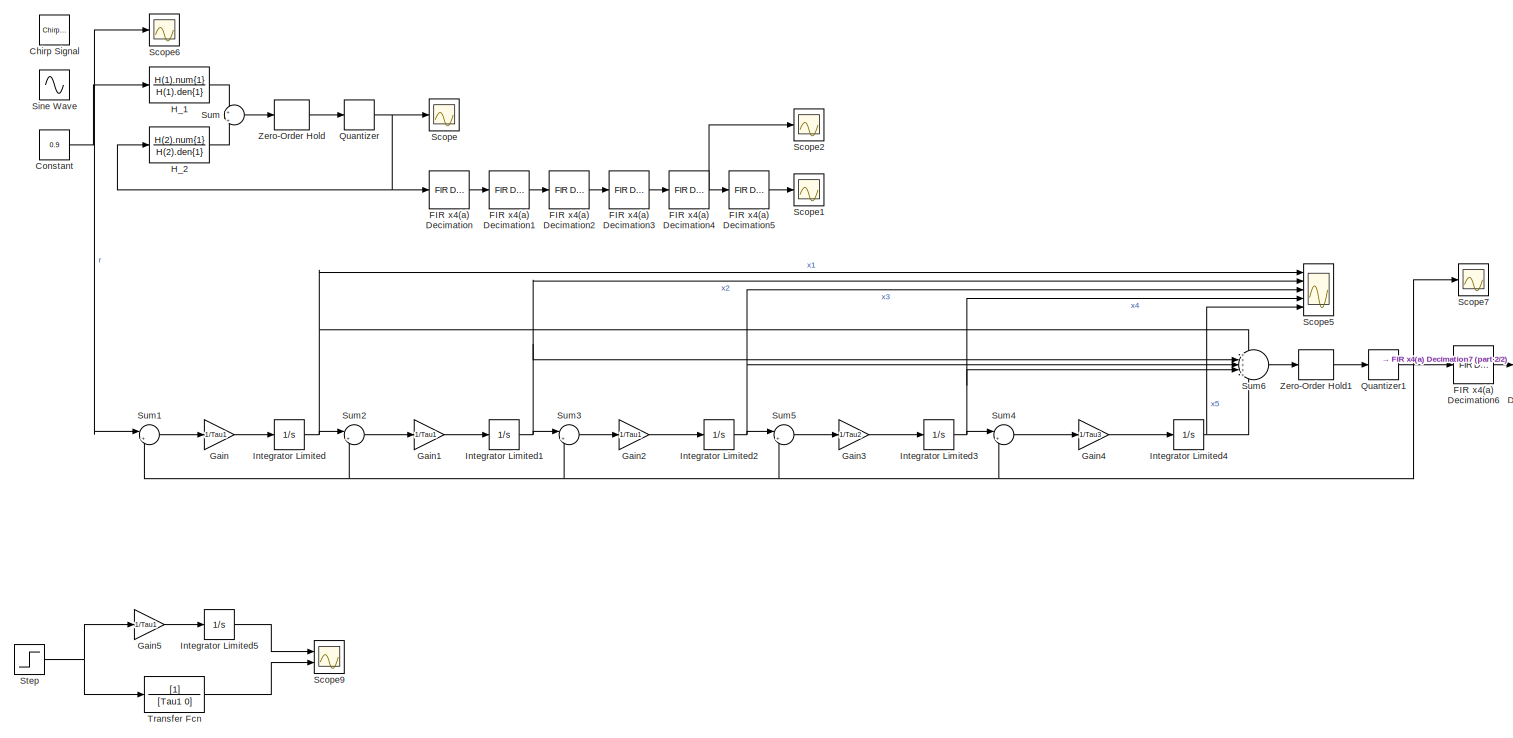
[diagram: root canvas - part 1/2, most of the canvas]
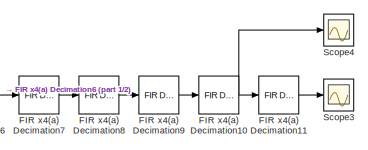
[diagram: root canvas - part 2/2, middle right region]
MODEL slx_2ecb0cfe1145
KIND model
CONFIG AbsTol = auto
CONFIG EnableMultiTasking = off
CONFIG FixedStep = auto
CONFIG MaxStep = auto
CONFIG MinStep = auto
CONFIG RelTol = 1e-9
CONFIG SampleTimeConstraint = Unconstrained
CONFIG Solver = ode45
CONFIG SolverName = ode45
CONFIG StartTime = 0.0
CONFIG StopTime = 0.0025
BLOCK [Reference] Chirp Signal  REF=simulink/Sources/Chirp Signal
  Ports = [0, 1]
  SourceBlock = simulink/Sources/Chirp Signal
  SourceProductBaseCode = SL
  SourceProductName = Simulink
  SourceType = chirp
BLOCK [Constant] Constant
  Value = 0.9
BLOCK [Reference] FIR x4(a) Decimation  REF=dspmlti4/FIR
Decimation
  Ports = [1, 1]
  SourceBlock = dspmlti4/FIR\nDecimation
  SourceProductBaseCode = DS
  SourceProductName = DSP System Toolbox
  SourceType = FIR Decimation
  UserDataPersistent = on
BLOCK [Reference] FIR x4(a) Decimation1  REF=dspmlti4/FIR
Decimation
  Ports = [1, 1]
  SourceBlock = dspmlti4/FIR\nDecimation
  SourceProductBaseCode = DS
  SourceProductName = DSP System Toolbox
  SourceType = FIR Decimation
  UserDataPersistent = on
BLOCK [Reference] FIR x4(a) Decimation10  REF=dspmlti4/FIR
Decimation
  Ports = [1, 1]
  SourceBlock = dspmlti4/FIR\nDecimation
  SourceProductBaseCode = DS
  SourceProductName = DSP System Toolbox
  SourceType = FIR Decimation
  UserDataPersistent = on
BLOCK [Reference] FIR x4(a) Decimation11  REF=dspmlti4/FIR
Decimation
  Ports = [1, 1]
  SourceBlock = dspmlti4/FIR\nDecimation
  SourceProductBaseCode = DS
  SourceProductName = DSP System Toolbox
  SourceType = FIR Decimation
  UserDataPersistent = on
BLOCK [Reference] FIR x4(a) Decimation2  REF=dspmlti4/FIR
Decimation
  Ports = [1, 1]
  SourceBlock = dspmlti4/FIR\nDecimation
  SourceProductBaseCode = DS
  SourceProductName = DSP System Toolbox
  SourceType = FIR Decimation
  UserDataPersistent = on
BLOCK [Reference] FIR x4(a) Decimation3  REF=dspmlti4/FIR
Decimation
  Ports = [1, 1]
  SourceBlock = dspmlti4/FIR\nDecimation
  SourceProductBaseCode = DS
  SourceProductName = DSP System Toolbox
  SourceType = FIR Decimation
  UserDataPersistent = on
BLOCK [Reference] FIR x4(a) Decimation4  REF=dspmlti4/FIR
Decimation
  Ports = [1, 1]
  SourceBlock = dspmlti4/FIR\nDecimation
  SourceProductBaseCode = DS
  SourceProductName = DSP System Toolbox
  SourceType = FIR Decimation
  UserDataPersistent = on
BLOCK [Reference] FIR x4(a) Decimation5  REF=dspmlti4/FIR
Decimation
  Ports = [1, 1]
  SourceBlock = dspmlti4/FIR\nDecimation
  SourceProductBaseCode = DS
  SourceProductName = DSP System Toolbox
  SourceType = FIR Decimation
  UserDataPersistent = on
BLOCK [Reference] FIR x4(a) Decimation6  REF=dspmlti4/FIR
Decimation
  Ports = [1, 1]
  SourceBlock = dspmlti4/FIR\nDecimation
  SourceProductBaseCode = DS
  SourceProductName = DSP System Toolbox
  SourceType = FIR Decimation
  UserDataPersistent = on
BLOCK [Reference] FIR x4(a) Decimation7  REF=dspmlti4/FIR
Decimation
  Ports = [1, 1]
  SourceBlock = dspmlti4/FIR\nDecimation
  SourceProductBaseCode = DS
  SourceProductName = DSP System Toolbox
  SourceType = FIR Decimation
  UserDataPersistent = on
BLOCK [Reference] FIR x4(a) Decimation8  REF=dspmlti4/FIR
Decimation
  Ports = [1, 1]
  SourceBlock = dspmlti4/FIR\nDecimation
  SourceProductBaseCode = DS
  SourceProductName = DSP System Toolbox
  SourceType = FIR Decimation
  UserDataPersistent = on
BLOCK [Reference] FIR x4(a) Decimation9  REF=dspmlti4/FIR
Decimation
  Ports = [1, 1]
  SourceBlock = dspmlti4/FIR\nDecimation
  SourceProductBaseCode = DS
  SourceProductName = DSP System Toolbox
  SourceType = FIR Decimation
  UserDataPersistent = on
BLOCK [Gain] Gain
  Gain = 1/Tau1
  OutDataTypeStr = Inherit: Inherit via internal rule
  ParamDataTypeStr = Inherit: Inherit via internal rule
  SaturateOnIntegerOverflow = off
BLOCK [Gain] Gain1
  Gain = 1/Tau1
  OutDataTypeStr = Inherit: Inherit via internal rule
  ParamDataTypeStr = Inherit: Inherit via internal rule
  SaturateOnIntegerOverflow = off
BLOCK [Gain] Gain2
  Gain = 1/Tau1
  OutDataTypeStr = Inherit: Inherit via internal rule
  ParamDataTypeStr = Inherit: Inherit via internal rule
  SaturateOnIntegerOverflow = off
BLOCK [Gain] Gain3
  Gain = 1/Tau2
  OutDataTypeStr = Inherit: Inherit via internal rule
  ParamDataTypeStr = Inherit: Inherit via internal rule
  SaturateOnIntegerOverflow = off
BLOCK [Gain] Gain4
  Gain = 1/Tau3
  OutDataTypeStr = Inherit: Inherit via internal rule
  ParamDataTypeStr = Inherit: Inherit via internal rule
  SaturateOnIntegerOverflow = off
BLOCK [Gain] Gain5
  Gain = 1/Tau1
  OutDataTypeStr = Inherit: Inherit via internal rule
  ParamDataTypeStr = Inherit: Inherit via internal rule
  SaturateOnIntegerOverflow = off
BLOCK [TransferFcn] H_1
  Denominator = H(1).den{1}
  Numerator = H(1).num{1}
BLOCK [TransferFcn] H_2
  Denominator = H(2).den{1}
  Numerator = H(2).num{1}
BLOCK [Integrator] Integrator Limited
  LowerSaturationLimit = -3
  Ports = [1, 1]
  UpperSaturationLimit = 3
  WrappedStateLowerValue = -3
  WrappedStateUpperValue = 3
BLOCK [Integrator] Integrator Limited1
  LimitOutput = on
  LowerSaturationLimit = -3
  Ports = [1, 1]
  UpperSaturationLimit = 3
  WrappedStateLowerValue = -3
  WrappedStateUpperValue = 3
BLOCK [Integrator] Integrator Limited2
  LimitOutput = on
  LowerSaturationLimit = -3
  Ports = [1, 1]
  UpperSaturationLimit = 3
  WrappedStateLowerValue = -3
  WrappedStateUpperValue = 3
BLOCK [Integrator] Integrator Limited3
  LimitOutput = on
  LowerSaturationLimit = -3
  Ports = [1, 1]
  UpperSaturationLimit = 3
  WrappedStateLowerValue = -3
  WrappedStateUpperValue = 3
BLOCK [Integrator] Integrator Limited4
  LimitOutput = on
  LowerSaturationLimit = -3
  Ports = [1, 1]
  UpperSaturationLimit = 3
  WrappedStateLowerValue = -3
  WrappedStateUpperValue = 3
BLOCK [Integrator] Integrator Limited5
  LimitOutput = on
  LowerSaturationLimit = -Inf
  Ports = [1, 1]
  UpperSaturationLimit = Inf
BLOCK [Signum] Quantizer
BLOCK [Signum] Quantizer1
BLOCK [Scope] Scope
  NumInputPorts = 1
  Ports = [1]
  ScopeSpecificationString = Simulink.scopes.TimeScopeBlockCfg('CurrentConfiguration', extmgr.ConfigurationSet(extmgr.Configuration('Core','General UI',true),extmgr.Configuration('Core','Source UI',true),extmgr.Configuration('Sources','WiredSimulink',true),extmgr.Configuration('Visuals','Time Domain',true,'SerializedDisplays',{struct('MinYLimReal','-1.25','MaxYLimReal','1.25','YLabelReal','','MinYLimMag','0.00000','MaxYLimMag...<+1357ch>
BLOCK [Scope] Scope1
  NumInputPorts = 1
  Ports = [1]
  ScopeSpecificationString = Simulink.scopes.TimeScopeBlockCfg('CurrentConfiguration', extmgr.ConfigurationSet(extmgr.Configuration('Core','General UI',true),extmgr.Configuration('Core','Source UI',true),extmgr.Configuration('Sources','WiredSimulink',true,'DataLoggingVariableName','ScopeData1'),extmgr.Configuration('Visuals','Time Domain',true,'SerializedDisplays',{struct('MinYLimReal','-0.00017','MaxYLimReal','0.00016','YLab...<+1426ch>
BLOCK [Scope] Scope2
  NumInputPorts = 1
  Ports = [1]
  ScopeSpecificationString = Simulink.scopes.TimeScopeBlockCfg('CurrentConfiguration', extmgr.ConfigurationSet(extmgr.Configuration('Core','General UI',true),extmgr.Configuration('Core','Source UI',true),extmgr.Configuration('Sources','WiredSimulink',true,'DataLoggingVariableName','ScopeData2'),extmgr.Configuration('Visuals','Time Domain',true,'SerializedDisplays',{struct('MinYLimReal','-0.00636','MaxYLimReal','0.0222','YLabe...<+1451ch>
BLOCK [Scope] Scope3
  NumInputPorts = 1
  Ports = [1]
  ScopeSpecificationString = Simulink.scopes.TimeScopeBlockCfg('CurrentConfiguration', extmgr.ConfigurationSet(extmgr.Configuration('Core','General UI',true),extmgr.Configuration('Core','Source UI',true),extmgr.Configuration('Sources','WiredSimulink',true,'DataLoggingVariableName','ScopeData1'),extmgr.Configuration('Visuals','Time Domain',true,'SerializedDisplays',{struct('MinYLimReal','-0.00017','MaxYLimReal','0.00016','YLab...<+1427ch>
BLOCK [Scope] Scope4
  NumInputPorts = 1
  Ports = [1]
  ScopeSpecificationString = Simulink.scopes.TimeScopeBlockCfg('CurrentConfiguration', extmgr.ConfigurationSet(extmgr.Configuration('Core','General UI',true),extmgr.Configuration('Core','Source UI',true),extmgr.Configuration('Sources','WiredSimulink',true,'DataLoggingVariableName','ScopeData2'),extmgr.Configuration('Visuals','Time Domain',true,'SerializedDisplays',{struct('MinYLimReal','-1.35354','MaxYLimReal','1.40648','YLab...<+1455ch>
BLOCK [Scope] Scope5
  NumInputPorts = 5
  Ports = [5]
  ScopeSpecificationString = Simulink.scopes.TimeScopeBlockCfg('CurrentConfiguration', extmgr.ConfigurationSet(extmgr.Configuration('Core','General UI',true),extmgr.Configuration('Core','Source UI',true),extmgr.Configuration('Sources','WiredSimulink',true,'DataLoggingVariableName','ScopeData3'),extmgr.Configuration('Visuals','Time Domain',true,'SerializedDisplays',{struct('MinYLimReal','-1.06491','MaxYLimReal','1.13648','YLab...<+1481ch>
BLOCK [Scope] Scope6
  NumInputPorts = 1
  Ports = [1]
  ScopeSpecificationString = Simulink.scopes.TimeScopeBlockCfg('CurrentConfiguration', extmgr.ConfigurationSet(extmgr.Configuration('Core','General UI',true),extmgr.Configuration('Core','Source UI',true),extmgr.Configuration('Sources','WiredSimulink',true,'DataLoggingVariableName','ScopeData4'),extmgr.Configuration('Visuals','Time Domain',true,'SerializedDisplays',{struct('MinYLimReal','0.8','MaxYLimReal','1.00000','YLabelRea...<+1342ch>
BLOCK [Scope] Scope7
  NumInputPorts = 1
  Ports = [1]
  ScopeSpecificationString = Simulink.scopes.TimeScopeBlockCfg('CurrentConfiguration', extmgr.ConfigurationSet(extmgr.Configuration('Core','General UI',true),extmgr.Configuration('Core','Source UI',true),extmgr.Configuration('Sources','WiredSimulink',true,'DataLoggingVariableName','ScopeData5'),extmgr.Configuration('Visuals','Time Domain',true,'SerializedDisplays',{struct('MinYLimReal','-1.25','MaxYLimReal','1.25','YLabelReal...<+1450ch>
BLOCK [Scope] Scope9
  NumInputPorts = 2
  Ports = [2]
  ScopeSpecificationString = Simulink.scopes.TimeScopeBlockCfg('CurrentConfiguration', extmgr.ConfigurationSet(extmgr.Configuration('Core','General UI',true),extmgr.Configuration('Core','Source UI',true),extmgr.Configuration('Sources','WiredSimulink',true,'DataLoggingVariableName','ScopeData7'),extmgr.Configuration('Visuals','Time Domain',true,'SerializedDisplays',{struct('MinYLimReal','-390.62498','MaxYLimReal','3515.62486',...<+2075ch>
BLOCK [Sin] Sine Wave
  Amplitude = 0.5
  Frequency = 2*pi*20000
  Ports = [0, 1]
  SampleTime = 0
BLOCK [Step] Step
  SampleTime = 0
  Time = 100e-12
BLOCK [Sum] Sum
  IconShape = round
  InputSameDT = off
  Inputs = +|+
  OutDataTypeStr = Inherit: Inherit via internal rule
  Ports = [2, 1]
  SaturateOnIntegerOverflow = off
BLOCK [Sum] Sum1
  IconShape = round
  InputSameDT = off
  Inputs = |+-
  OutDataTypeStr = Inherit: Inherit via internal rule
  Ports = [2, 1]
  SaturateOnIntegerOverflow = off
BLOCK [Sum] Sum2
  IconShape = round
  InputSameDT = off
  Inputs = |+-
  OutDataTypeStr = Inherit: Inherit via internal rule
  Ports = [2, 1]
  SaturateOnIntegerOverflow = off
BLOCK [Sum] Sum3
  IconShape = round
  InputSameDT = off
  Inputs = |+-
  OutDataTypeStr = Inherit: Inherit via internal rule
  Ports = [2, 1]
  SaturateOnIntegerOverflow = off
BLOCK [Sum] Sum4
  IconShape = round
  InputSameDT = off
  Inputs = |+-
  OutDataTypeStr = Inherit: Inherit via internal rule
  Ports = [2, 1]
  SaturateOnIntegerOverflow = off
BLOCK [Sum] Sum5
  IconShape = round
  InputSameDT = off
  Inputs = |+-
  OutDataTypeStr = Inherit: Inherit via internal rule
  Ports = [2, 1]
  SaturateOnIntegerOverflow = off
BLOCK [Sum] Sum6
  IconShape = round
  InputSameDT = off
  Inputs = +++++
  OutDataTypeStr = Inherit: Inherit via internal rule
  Ports = [5, 1]
  SaturateOnIntegerOverflow = off
BLOCK [TransferFcn] Transfer Fcn
  Denominator = [Tau1 0]
BLOCK [ZeroOrderHold] Zero-Order Hold
  SampleTime = 1/2.8224e6
BLOCK [ZeroOrderHold] Zero-Order Hold1
  SampleTime = 1/2.8224e6
NET Constant:1 -> H_1:1, Scope6:1, Sum1:1
NET FIR x4(a) Decimation10:1 -> FIR x4(a) Decimation11:1, Scope4:1
LINE FIR x4(a) Decimation11:1 -> Scope3:1
LINE FIR x4(a) Decimation1:1 -> FIR x4(a) Decimation2:1
LINE FIR x4(a) Decimation2:1 -> FIR x4(a) Decimation3:1
LINE FIR x4(a) Decimation3:1 -> FIR x4(a) Decimation4:1
NET FIR x4(a) Decimation4:1 -> FIR x4(a) Decimation5:1, Scope2:1
LINE FIR x4(a) Decimation5:1 -> Scope1:1
LINE FIR x4(a) Decimation6:1 -> FIR x4(a) Decimation7:1
LINE FIR x4(a) Decimation7:1 -> FIR x4(a) Decimation8:1
LINE FIR x4(a) Decimation8:1 -> FIR x4(a) Decimation9:1
LINE FIR x4(a) Decimation9:1 -> FIR x4(a) Decimation10:1
LINE FIR x4(a) Decimation:1 -> FIR x4(a) Decimation1:1
LINE Gain1:1 -> Integrator Limited1:1
LINE Gain2:1 -> Integrator Limited2:1
LINE Gain3:1 -> Integrator Limited3:1
LINE Gain4:1 -> Integrator Limited4:1
LINE Gain5:1 -> Integrator Limited5:1
LINE Gain:1 -> Integrator Limited:1
LINE H_1:1 -> Sum:1
LINE H_2:1 -> Sum:2
NET Integrator Limited1:1 -> Scope5:2, Sum3:1, Sum6:2
NET Integrator Limited2:1 -> Scope5:3, Sum5:1, Sum6:3
NET Integrator Limited3:1 -> Scope5:4, Sum4:1, Sum6:4
NET Integrator Limited4:1 -> Scope5:5, Sum6:5
LINE Integrator Limited5:1 -> Scope9:1
NET Integrator Limited:1 -> Scope5:1, Sum2:1, Sum6:1
NET Quantizer1:1 -> FIR x4(a) Decimation6:1, Scope7:1, Sum1:2, Sum2:2, Sum3:2, Sum4:2, Sum5:2
NET Quantizer:1 -> FIR x4(a) Decimation:1, H_2:1, Scope:1
NET Step:1 -> Gain5:1, Transfer Fcn:1
LINE Sum1:1 -> Gain:1
LINE Sum2:1 -> Gain1:1
LINE Sum3:1 -> Gain2:1
LINE Sum4:1 -> Gain4:1
LINE Sum5:1 -> Gain3:1
LINE Sum6:1 -> Zero-Order Hold1:1
LINE Sum:1 -> Zero-Order Hold:1
LINE Transfer Fcn:1 -> Scope9:2
LINE Zero-Order Hold1:1 -> Quantizer1:1
LINE Zero-Order Hold:1 -> Quantizer:1
note: NET lines group one-source signal fan-out (src -> all destinations, sorted); 1:1 wires keep LINE
